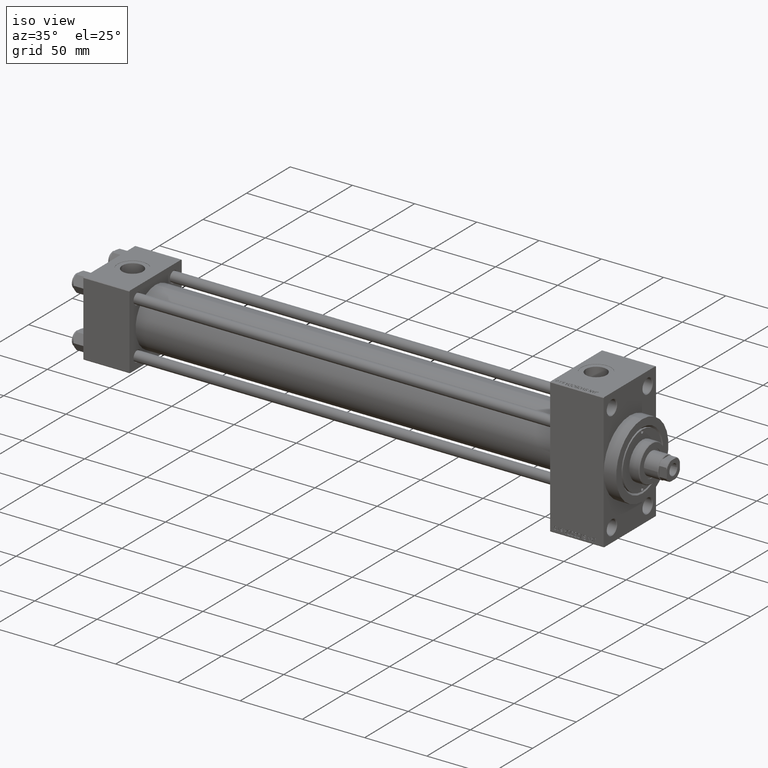
[diagram: clean part render]
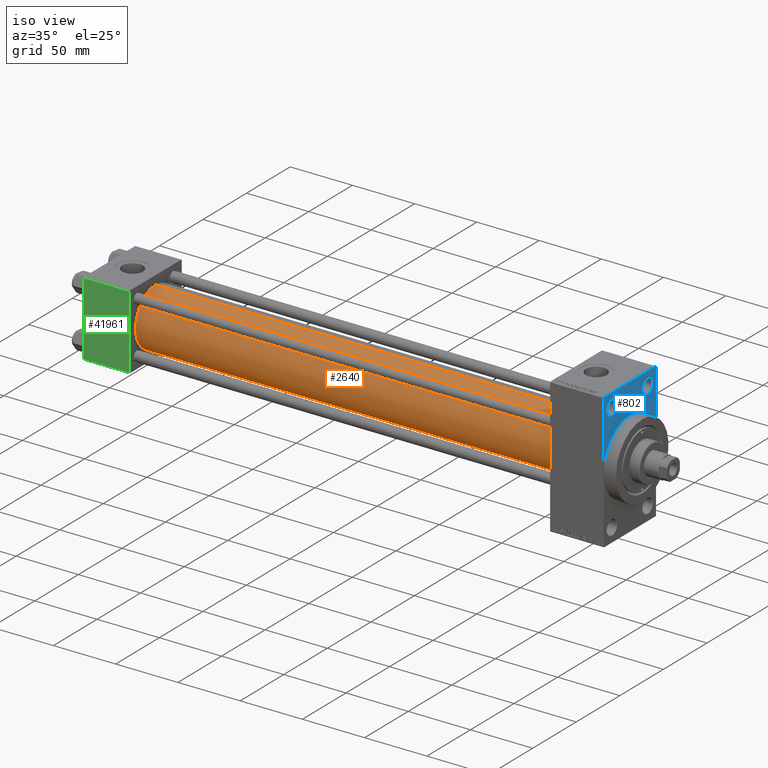
[diagram: same view with three faces highlighted in distinct colors, each labeled with its STEP entity id]
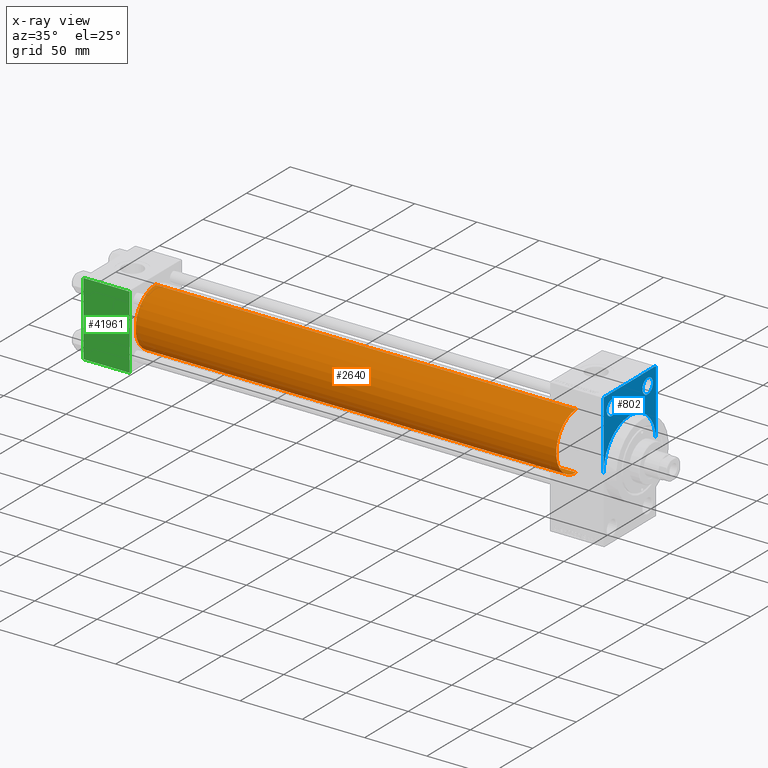
[diagram: x-ray of the same camera — body ghosted, the three highlighted faces saturated]
A machine part, iso view with three faces highlighted in distinct colors.
The next image is the same camera in x-ray (body ghosted, the three faces saturated) — at least one of them is partly hidden behind the body in this view.
Their STEP definitions:

[orange] entity #2640 — the highlighted cylindrical surface (edge-blend (fillet) strip) has radius 23 mm, axis along (-1, -0, -0).
#1129 = DIRECTION ( 'NONE',  ( -1.000000000000000000, -0.000000000000000000, -0.000000000000000000 ) ) ;
#2640 = ADVANCED_FACE ( 'NONE', ( #23449 ), #15550, .T. ) ;
#5256 = LINE ( 'NONE', #31141, #9398 ) ;
#6176 = LINE ( 'NONE', #27740, #26885 ) ;
#8538 = CARTESIAN_POINT ( 'NONE',  ( 36.99999999999997868, 2.146024240737016609E-16, -23.00000000000000000 ) ) ;
#8931 = VERTEX_POINT ( 'NONE', #42911 ) ;
#9398 = VECTOR ( 'NONE', #27063, 1000.000000000000000 ) ;
#10675 = ORIENTED_EDGE ( 'NONE', *, *, #24440, .F. ) ;
#11134 = ORIENTED_EDGE ( 'NONE', *, *, #20403, .T. ) ;
#11845 = CIRCLE ( 'NONE', #25600, 23.00000000000000000 ) ;
#14325 = CARTESIAN_POINT ( 'NONE',  ( 375.0000000000000000, 2.146024240737016609E-16, -23.00000000000000000 ) ) ;
#15550 = CYLINDRICAL_SURFACE ( 'NONE', #20321, 23.00000000000000000 ) ;
#18653 = VERTEX_POINT ( 'NONE', #14325 ) ;
#20321 = AXIS2_PLACEMENT_3D ( 'NONE', #30147, #1129, #23694 ) ;
#20403 = EDGE_CURVE ( 'NONE', #28366, #8931, #5256, .T. ) ;
#21323 = CIRCLE ( 'NONE', #33568, 23.00000000000000000 ) ;
#23449 = FACE_OUTER_BOUND ( 'NONE', #45594, .T. ) ;
#23694 = DIRECTION ( 'NONE',  ( 0.000000000000000000, 0.000000000000000000, 1.000000000000000000 ) ) ;
#24157 = DIRECTION ( 'NONE',  ( 0.000000000000000000, 0.000000000000000000, 1.000000000000000000 ) ) ;
#24440 = EDGE_CURVE ( 'NONE', #28366, #18653, #11845, .T. ) ;
#24471 = ORIENTED_EDGE ( 'NONE', *, *, #43925, .F. ) ;
#24940 = DIRECTION ( 'NONE',  ( 1.000000000000000000, 0.000000000000000000, 0.000000000000000000 ) ) ;
#25600 = AXIS2_PLACEMENT_3D ( 'NONE', #33074, #24940, #29458 ) ;
#26218 = ORIENTED_EDGE ( 'NONE', *, *, #37933, .T. ) ;
#26885 = VECTOR ( 'NONE', #35410, 1000.000000000000000 ) ;
#27063 = DIRECTION ( 'NONE',  ( -1.000000000000000000, -0.000000000000000000, -0.000000000000000000 ) ) ;
#27740 = CARTESIAN_POINT ( 'NONE',  ( 375.0000000000000000, 2.146024240737016609E-16, -23.00000000000000000 ) ) ;
#28366 = VERTEX_POINT ( 'NONE', #46634 ) ;
#29458 = DIRECTION ( 'NONE',  ( 0.000000000000000000, 0.000000000000000000, -1.000000000000000000 ) ) ;
#30147 = CARTESIAN_POINT ( 'NONE',  ( 375.0000000000000000, -2.602085213965210642E-15, 0.000000000000000000 ) ) ;
#31141 = CARTESIAN_POINT ( 'NONE',  ( 375.0000000000000000, -2.602085213965210642E-15, 23.00000000000000000 ) ) ;
#33074 = CARTESIAN_POINT ( 'NONE',  ( 375.0000000000000000, -2.602085213965210642E-15, 0.000000000000000000 ) ) ;
#33568 = AXIS2_PLACEMENT_3D ( 'NONE', #41902, #45747, #24157 ) ;
#34320 = VERTEX_POINT ( 'NONE', #8538 ) ;
#35410 = DIRECTION ( 'NONE',  ( -1.000000000000000000, -0.000000000000000000, -0.000000000000000000 ) ) ;
#37933 = EDGE_CURVE ( 'NONE', #8931, #34320, #21323, .T. ) ;
#41902 = CARTESIAN_POINT ( 'NONE',  ( 36.99999999999997868, -2.602085213965210642E-15, 0.000000000000000000 ) ) ;
#42911 = CARTESIAN_POINT ( 'NONE',  ( 36.99999999999997868, -2.602085213965210642E-15, 23.00000000000000000 ) ) ;
#43925 = EDGE_CURVE ( 'NONE', #18653, #34320, #6176, .T. ) ;
#45594 = EDGE_LOOP ( 'NONE', ( #24471, #10675, #11134, #26218 ) ) ;
#45747 = DIRECTION ( 'NONE',  ( 1.000000000000000000, -0.000000000000000000, 0.000000000000000000 ) ) ;
#46634 = CARTESIAN_POINT ( 'NONE',  ( 375.0000000000000000, -2.602085213965210642E-15, 23.00000000000000000 ) ) ;

[blue] entity #802 — the highlighted planar face has unit normal (-1, 0, 0).
#802 = ADVANCED_FACE ( 'NONE', ( #15583, #33323, #33097 ), #44596, .F. ) ;
#955 = ORIENTED_EDGE ( 'NONE', *, *, #30835, .F. ) ;
#1373 = AXIS2_PLACEMENT_3D ( 'NONE', #4232, #29882, #44055 ) ;
#1495 = EDGE_LOOP ( 'NONE', ( #34219, #8580 ) ) ;
#3107 = AXIS2_PLACEMENT_3D ( 'NONE', #46155, #36051, #13541 ) ;
#4232 = CARTESIAN_POINT ( 'NONE',  ( 418.0000000000000000, 20.50000000000000000, 43.50000000000000000 ) ) ;
#4988 = DIRECTION ( 'NONE',  ( 1.000000000000000000, 0.000000000000000000, 0.000000000000000000 ) ) ;
#5628 = VECTOR ( 'NONE', #38010, 1000.000000000000114 ) ;
#5660 = CARTESIAN_POINT ( 'NONE',  ( 418.0000000000000000, 29.49999999999999645, 54.49999999999999289 ) ) ;
#6146 = VERTEX_POINT ( 'NONE', #25242 ) ;
#6592 = DIRECTION ( 'NONE',  ( 0.000000000000000000, 0.000000000000000000, -1.000000000000000000 ) ) ;
#7695 = CARTESIAN_POINT ( 'NONE',  ( 418.0000000000000000, 0.000000000000000000, 0.000000000000000000 ) ) ;
#8185 = DIRECTION ( 'NONE',  ( 1.000000000000000000, 0.000000000000000000, 0.000000000000000000 ) ) ;
#8580 = ORIENTED_EDGE ( 'NONE', *, *, #31991, .T. ) ;
#8693 = ORIENTED_EDGE ( 'NONE', *, *, #41562, .F. ) ;
#8769 = LINE ( 'NONE', #34431, #22996 ) ;
#9004 = CARTESIAN_POINT ( 'NONE',  ( 418.0000000000000000, -30.00000000000000000, 53.99999999999994316 ) ) ;
#9722 = CARTESIAN_POINT ( 'NONE',  ( 418.0000000000000000, -30.00000000000000000, 54.50000000000000000 ) ) ;
#10462 = CIRCLE ( 'NONE', #20406, 5.999999999999950262 ) ;
#10825 = CARTESIAN_POINT ( 'NONE',  ( 418.0000000000000000, 29.99999999999999645, 54.49999999999999289 ) ) ;
#10914 = CARTESIAN_POINT ( 'NONE',  ( 418.0000000000000000, 20.50000000000000000, 49.49999999999995026 ) ) ;
#11379 = VERTEX_POINT ( 'NONE', #26624 ) ;
#12848 = EDGE_CURVE ( 'NONE', #31378, #39156, #32035, .T. ) ;
#13156 = DIRECTION ( 'NONE',  ( 0.000000000000000000, 0.000000000000000000, -1.000000000000000000 ) ) ;
#13541 = DIRECTION ( 'NONE',  ( 0.000000000000000000, 0.000000000000000000, 1.000000000000000000 ) ) ;
#14674 = ORIENTED_EDGE ( 'NONE', *, *, #32112, .T. ) ;
#15148 = DIRECTION ( 'NONE',  ( 0.000000000000000000, 0.000000000000000000, -1.000000000000000000 ) ) ;
#15409 = ORIENTED_EDGE ( 'NONE', *, *, #30625, .F. ) ;
#15583 = FACE_BOUND ( 'NONE', #20749, .T. ) ;
#17177 = EDGE_CURVE ( 'NONE', #31224, #6146, #29487, .T. ) ;
#17912 = EDGE_CURVE ( 'NONE', #11379, #41510, #27456, .T. ) ;
#17923 = DIRECTION ( 'NONE',  ( -1.000000000000000000, 0.000000000000000000, -0.000000000000000000 ) ) ;
#19092 = CARTESIAN_POINT ( 'NONE',  ( 418.0000000000000000, -30.00000000000000000, 0.000000000000000000 ) ) ;
#19136 = VECTOR ( 'NONE', #6592, 1000.000000000000000 ) ;
#20090 = CARTESIAN_POINT ( 'NONE',  ( 418.0000000000000000, 0.000000000000000000, 0.000000000000000000 ) ) ;
#20366 = VECTOR ( 'NONE', #44751, 1000.000000000000114 ) ;
#20406 = AXIS2_PLACEMENT_3D ( 'NONE', #29960, #44837, #32878 ) ;
#20749 = EDGE_LOOP ( 'NONE', ( #20927, #31339 ) ) ;
#20824 = DIRECTION ( 'NONE',  ( 0.000000000000000000, 0.000000000000000000, 1.000000000000000000 ) ) ;
#20927 = ORIENTED_EDGE ( 'NONE', *, *, #43011, .T. ) ;
#21233 = AXIS2_PLACEMENT_3D ( 'NONE', #23037, #8185, #15148 ) ;
#21470 = CARTESIAN_POINT ( 'NONE',  ( 418.0000000000000000, -20.50000000000000000, 49.49999999999995026 ) ) ;
#21671 = VERTEX_POINT ( 'NONE', #32991 ) ;
#21880 = CARTESIAN_POINT ( 'NONE',  ( 418.0000000000000000, 29.99999999999999645, 53.99999999999999289 ) ) ;
#22305 = DIRECTION ( 'NONE',  ( -0.000000000000000000, 0.000000000000000000, 1.000000000000000000 ) ) ;
#22679 = EDGE_CURVE ( 'NONE', #6146, #11379, #37308, .T. ) ;
#22996 = VECTOR ( 'NONE', #34182, 1000.000000000000000 ) ;
#23037 = CARTESIAN_POINT ( 'NONE',  ( 418.0000000000000000, 0.000000000000000000, 0.000000000000000000 ) ) ;
#23789 = CIRCLE ( 'NONE', #3107, 5.999999999999950262 ) ;
#24333 = CARTESIAN_POINT ( 'NONE',  ( 418.0000000000000000, 0.000000000000000000, 30.00000000000000000 ) ) ;
#25242 = CARTESIAN_POINT ( 'NONE',  ( 418.0000000000000000, -29.49999999999994671, 54.50000000000000000 ) ) ;
#25570 = ORIENTED_EDGE ( 'NONE', *, *, #22679, .T. ) ;
#25658 = DIRECTION ( 'NONE',  ( -1.000000000000000000, 0.000000000000000000, -0.000000000000000000 ) ) ;
#26482 = AXIS2_PLACEMENT_3D ( 'NONE', #31843, #17923, #20824 ) ;
#26624 = CARTESIAN_POINT ( 'NONE',  ( 418.0000000000000000, -30.00000000000000000, 53.99999999999994316 ) ) ;
#27159 = AXIS2_PLACEMENT_3D ( 'NONE', #7695, #25658, #22305 ) ;
#27456 = LINE ( 'NONE', #9722, #19136 ) ;
#28724 = EDGE_LOOP ( 'NONE', ( #33931, #25570, #36270, #955, #15409, #8693, #14674 ) ) ;
#28789 = CIRCLE ( 'NONE', #40365, 30.00000000000000000 ) ;
#29134 = CARTESIAN_POINT ( 'NONE',  ( 418.0000000000000000, 20.50000000000000000, 37.50000000000004974 ) ) ;
#29385 = EDGE_CURVE ( 'NONE', #35261, #39083, #10462, .T. ) ;
#29487 = LINE ( 'NONE', #10825, #47475 ) ;
#29646 = CARTESIAN_POINT ( 'NONE',  ( 418.0000000000000000, 29.49999999999999645, 54.49999999999999289 ) ) ;
#29882 = DIRECTION ( 'NONE',  ( -1.000000000000000000, 0.000000000000000000, -0.000000000000000000 ) ) ;
#29960 = CARTESIAN_POINT ( 'NONE',  ( 418.0000000000000000, -20.50000000000000000, 43.50000000000000000 ) ) ;
#30349 = LINE ( 'NONE', #29646, #20366 ) ;
#30625 = EDGE_CURVE ( 'NONE', #21671, #42982, #39506, .T. ) ;
#30835 = EDGE_CURVE ( 'NONE', #42982, #41510, #28789, .T. ) ;
#31224 = VERTEX_POINT ( 'NONE', #5660 ) ;
#31339 = ORIENTED_EDGE ( 'NONE', *, *, #29385, .T. ) ;
#31378 = VERTEX_POINT ( 'NONE', #29134 ) ;
#31843 = CARTESIAN_POINT ( 'NONE',  ( 418.0000000000000000, 20.50000000000000000, 43.50000000000000000 ) ) ;
#31991 = EDGE_CURVE ( 'NONE', #39156, #31378, #36458, .T. ) ;
#32035 = CIRCLE ( 'NONE', #1373, 5.999999999999950262 ) ;
#32112 = EDGE_CURVE ( 'NONE', #41054, #31224, #30349, .T. ) ;
#32878 = DIRECTION ( 'NONE',  ( 0.000000000000000000, 0.000000000000000000, 1.000000000000000000 ) ) ;
#32991 = CARTESIAN_POINT ( 'NONE',  ( 418.0000000000000000, 30.00000000000000000, 0.000000000000000000 ) ) ;
#33097 = FACE_OUTER_BOUND ( 'NONE', #28724, .T. ) ;
#33323 = FACE_BOUND ( 'NONE', #1495, .T. ) ;
#33931 = ORIENTED_EDGE ( 'NONE', *, *, #17177, .T. ) ;
#34182 = DIRECTION ( 'NONE',  ( 0.000000000000000000, 0.000000000000000000, -1.000000000000000000 ) ) ;
#34219 = ORIENTED_EDGE ( 'NONE', *, *, #12848, .T. ) ;
#34431 = CARTESIAN_POINT ( 'NONE',  ( 418.0000000000000000, 29.99999999999999645, 54.49999999999999289 ) ) ;
#35261 = VERTEX_POINT ( 'NONE', #21470 ) ;
#35860 = CARTESIAN_POINT ( 'NONE',  ( 418.0000000000000000, -20.50000000000000000, 37.50000000000004974 ) ) ;
#36051 = DIRECTION ( 'NONE',  ( -1.000000000000000000, 0.000000000000000000, -0.000000000000000000 ) ) ;
#36270 = ORIENTED_EDGE ( 'NONE', *, *, #17912, .T. ) ;
#36458 = CIRCLE ( 'NONE', #26482, 5.999999999999950262 ) ;
#37308 = LINE ( 'NONE', #9004, #5628 ) ;
#38010 = DIRECTION ( 'NONE',  ( -0.000000000000000000, -0.7071067811865451302, -0.7071067811865500152 ) ) ;
#39083 = VERTEX_POINT ( 'NONE', #35860 ) ;
#39156 = VERTEX_POINT ( 'NONE', #10914 ) ;
#39506 = CIRCLE ( 'NONE', #21233, 30.00000000000000000 ) ;
#40365 = AXIS2_PLACEMENT_3D ( 'NONE', #20090, #4988, #13156 ) ;
#40539 = DIRECTION ( 'NONE',  ( 0.000000000000000000, -1.000000000000000000, 1.156482317317871478E-16 ) ) ;
#41054 = VERTEX_POINT ( 'NONE', #21880 ) ;
#41510 = VERTEX_POINT ( 'NONE', #19092 ) ;
#41562 = EDGE_CURVE ( 'NONE', #41054, #21671, #8769, .T. ) ;
#42982 = VERTEX_POINT ( 'NONE', #24333 ) ;
#43011 = EDGE_CURVE ( 'NONE', #39083, #35261, #23789, .T. ) ;
#44055 = DIRECTION ( 'NONE',  ( 0.000000000000000000, 0.000000000000000000, 1.000000000000000000 ) ) ;
#44596 = PLANE ( 'NONE',  #27159 ) ;
#44751 = DIRECTION ( 'NONE',  ( 0.000000000000000000, -0.7071067811865474617, 0.7071067811865474617 ) ) ;
#44837 = DIRECTION ( 'NONE',  ( -1.000000000000000000, 0.000000000000000000, -0.000000000000000000 ) ) ;
#46155 = CARTESIAN_POINT ( 'NONE',  ( 418.0000000000000000, -20.50000000000000000, 43.50000000000000000 ) ) ;
#47475 = VECTOR ( 'NONE', #40539, 1000.000000000000000 ) ;

[green] entity #41961 — the highlighted planar face has unit normal (0, 1, 0).
#172 = DIRECTION ( 'NONE',  ( 0.000000000000000000, 0.000000000000000000, -1.000000000000000000 ) ) ;
#2922 = CARTESIAN_POINT ( 'NONE',  ( 37.00000000000000000, -30.00000000000000000, -29.50000000000001776 ) ) ;
#3383 = DIRECTION ( 'NONE',  ( 1.000000000000000000, 0.000000000000000000, 0.000000000000000000 ) ) ;
#4324 = VERTEX_POINT ( 'NONE', #21632 ) ;
#4886 = CARTESIAN_POINT ( 'NONE',  ( 37.00000000000000000, -30.00000000000000000, -29.50000000000001776 ) ) ;
#5595 = ORIENTED_EDGE ( 'NONE', *, *, #34079, .T. ) ;
#6927 = AXIS2_PLACEMENT_3D ( 'NONE', #14527, #36803, #33201 ) ;
#7869 = CARTESIAN_POINT ( 'NONE',  ( 0.000000000000000000, -30.00000000000000000, 29.99999999999999289 ) ) ;
#9100 = EDGE_CURVE ( 'NONE', #38102, #41970, #47446, .T. ) ;
#13539 = VECTOR ( 'NONE', #172, 1000.000000000000000 ) ;
#14527 = CARTESIAN_POINT ( 'NONE',  ( 37.00000000000000000, -30.00000000000000000, 29.99999999999999289 ) ) ;
#15071 = DIRECTION ( 'NONE',  ( 0.000000000000000000, 0.000000000000000000, -1.000000000000000000 ) ) ;
#16994 = LINE ( 'NONE', #25119, #38829 ) ;
#19682 = ORIENTED_EDGE ( 'NONE', *, *, #30173, .T. ) ;
#20905 = CARTESIAN_POINT ( 'NONE',  ( 0.000000000000000000, -30.00000000000000000, 29.49999999999999289 ) ) ;
#21632 = CARTESIAN_POINT ( 'NONE',  ( 0.000000000000000000, -30.00000000000000000, -29.50000000000001776 ) ) ;
#22177 = FACE_OUTER_BOUND ( 'NONE', #36355, .T. ) ;
#23622 = VECTOR ( 'NONE', #15071, 1000.000000000000000 ) ;
#25119 = CARTESIAN_POINT ( 'NONE',  ( 37.00000000000000000, -30.00000000000000000, 29.49999999999999289 ) ) ;
#29172 = ORIENTED_EDGE ( 'NONE', *, *, #9100, .F. ) ;
#29311 = VERTEX_POINT ( 'NONE', #20905 ) ;
#30173 = EDGE_CURVE ( 'NONE', #4324, #41970, #32883, .T. ) ;
#30617 = ORIENTED_EDGE ( 'NONE', *, *, #37825, .T. ) ;
#31906 = VECTOR ( 'NONE', #3383, 1000.000000000000000 ) ;
#32883 = LINE ( 'NONE', #2922, #31906 ) ;
#33039 = CARTESIAN_POINT ( 'NONE',  ( 37.00000000000000000, -30.00000000000000000, 29.99999999999999289 ) ) ;
#33201 = DIRECTION ( 'NONE',  ( 0.000000000000000000, -0.000000000000000000, 1.000000000000000000 ) ) ;
#34079 = EDGE_CURVE ( 'NONE', #38102, #29311, #16994, .T. ) ;
#36327 = PLANE ( 'NONE',  #6927 ) ;
#36355 = EDGE_LOOP ( 'NONE', ( #30617, #19682, #29172, #5595 ) ) ;
#36803 = DIRECTION ( 'NONE',  ( -0.000000000000000000, 1.000000000000000000, 0.000000000000000000 ) ) ;
#37825 = EDGE_CURVE ( 'NONE', #29311, #4324, #40710, .T. ) ;
#38102 = VERTEX_POINT ( 'NONE', #40658 ) ;
#38829 = VECTOR ( 'NONE', #43347, 1000.000000000000000 ) ;
#40658 = CARTESIAN_POINT ( 'NONE',  ( 37.00000000000000000, -30.00000000000000000, 29.49999999999999289 ) ) ;
#40710 = LINE ( 'NONE', #7869, #23622 ) ;
#41961 = ADVANCED_FACE ( 'NONE', ( #22177 ), #36327, .F. ) ;
#41970 = VERTEX_POINT ( 'NONE', #4886 ) ;
#43347 = DIRECTION ( 'NONE',  ( -1.000000000000000000, 0.000000000000000000, 0.000000000000000000 ) ) ;
#47446 = LINE ( 'NONE', #33039, #13539 ) ;